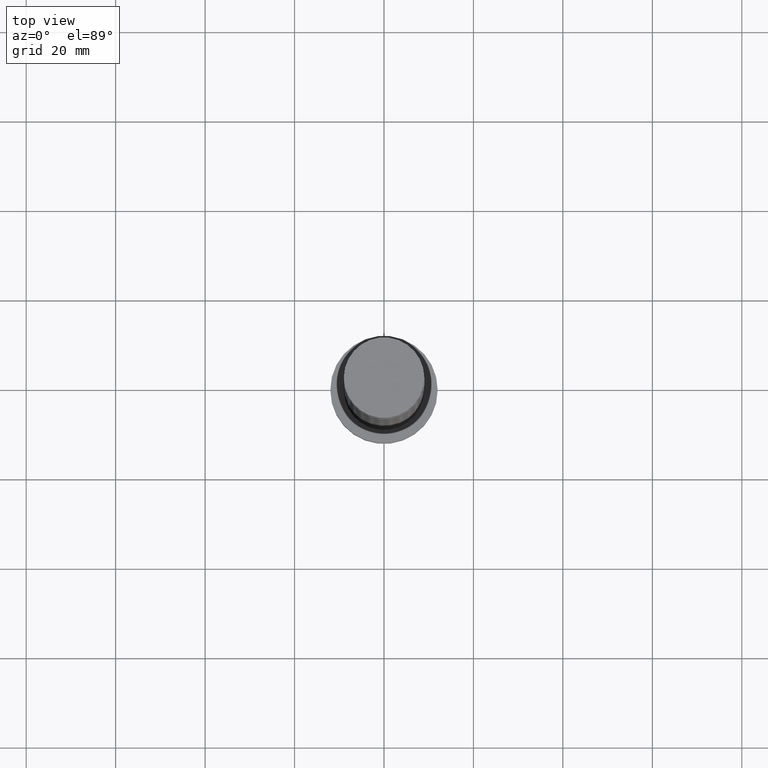
[diagram: clean part render]
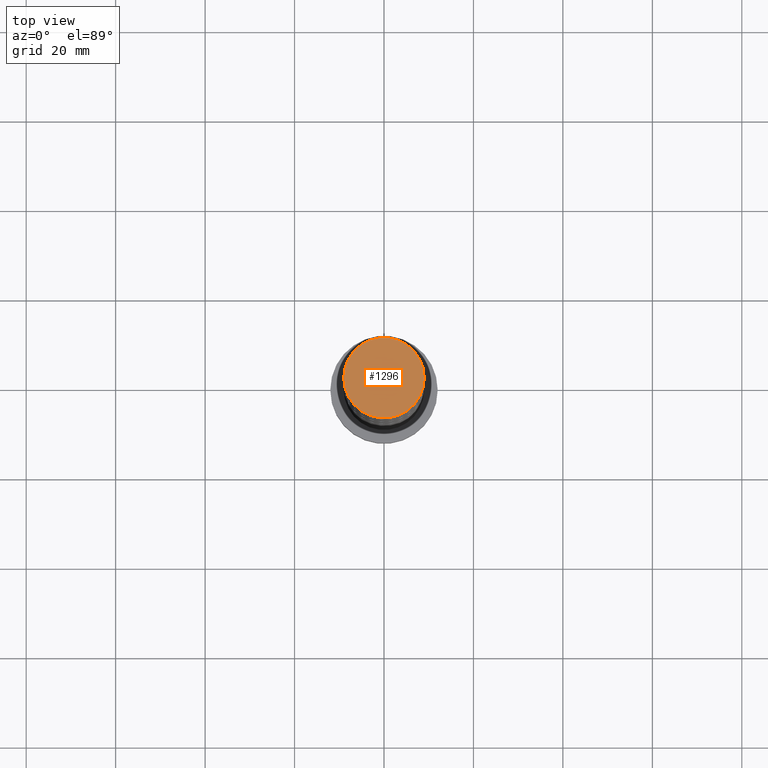
[diagram: same view with one face highlighted and labeled with its STEP entity id]
A machine part, top view. The second image highlights one B-rep face of the part: STEP entity #1296.
In plain terms, the highlighted planar face has unit normal (0, 0, 1).
Its self-contained STEP definition (entity closure, byte-faithful):
#35 = EDGE_CURVE ( 'NONE', #1368, #1239, #1325, .T. ) ;
#45 = AXIS2_PLACEMENT_3D ( 'NONE', #965, #733, #1241 ) ;
#65 = CIRCLE ( 'NONE', #45, 9.000000000000000000 ) ;
#105 = DIRECTION ( 'NONE',  ( 0.000000000000000000, 0.000000000000000000, 1.000000000000000000 ) ) ;
#118 = ORIENTED_EDGE ( 'NONE', *, *, #35, .T. ) ;
#125 = FACE_OUTER_BOUND ( 'NONE', #901, .T. ) ;
#243 = DIRECTION ( 'NONE',  ( 1.000000000000000000, 0.000000000000000000, -0.000000000000000000 ) ) ;
#255 = ORIENTED_EDGE ( 'NONE', *, *, #388, .T. ) ;
#267 = DIRECTION ( 'NONE',  ( 0.000000000000000000, 0.000000000000000000, 1.000000000000000000 ) ) ;
#359 = CARTESIAN_POINT ( 'NONE',  ( -9.000000000000000000, 0.000000000000000000, 160.0000000000000000 ) ) ;
#388 = EDGE_CURVE ( 'NONE', #1239, #1368, #65, .T. ) ;
#512 = CARTESIAN_POINT ( 'NONE',  ( 9.000000000000000000, 1.102182119232617714E-15, 160.0000000000000000 ) ) ;
#562 = AXIS2_PLACEMENT_3D ( 'NONE', #650, #267, #243 ) ;
#650 = CARTESIAN_POINT ( 'NONE',  ( 0.000000000000000000, 0.000000000000000000, 160.0000000000000000 ) ) ;
#733 = DIRECTION ( 'NONE',  ( 0.000000000000000000, 0.000000000000000000, 1.000000000000000000 ) ) ;
#745 = CARTESIAN_POINT ( 'NONE',  ( 0.000000000000000000, 0.000000000000000000, 160.0000000000000000 ) ) ;
#770 = PLANE ( 'NONE',  #562 ) ;
#901 = EDGE_LOOP ( 'NONE', ( #255, #118 ) ) ;
#965 = CARTESIAN_POINT ( 'NONE',  ( 0.000000000000000000, 0.000000000000000000, 160.0000000000000000 ) ) ;
#1026 = AXIS2_PLACEMENT_3D ( 'NONE', #745, #105, #1512 ) ;
#1239 = VERTEX_POINT ( 'NONE', #359 ) ;
#1241 = DIRECTION ( 'NONE',  ( 1.000000000000000000, 0.000000000000000000, 0.000000000000000000 ) ) ;
#1296 = ADVANCED_FACE ( 'NONE', ( #125 ), #770, .T. ) ;
#1325 = CIRCLE ( 'NONE', #1026, 9.000000000000000000 ) ;
#1368 = VERTEX_POINT ( 'NONE', #512 ) ;
#1512 = DIRECTION ( 'NONE',  ( 1.000000000000000000, 0.000000000000000000, 0.000000000000000000 ) ) ;